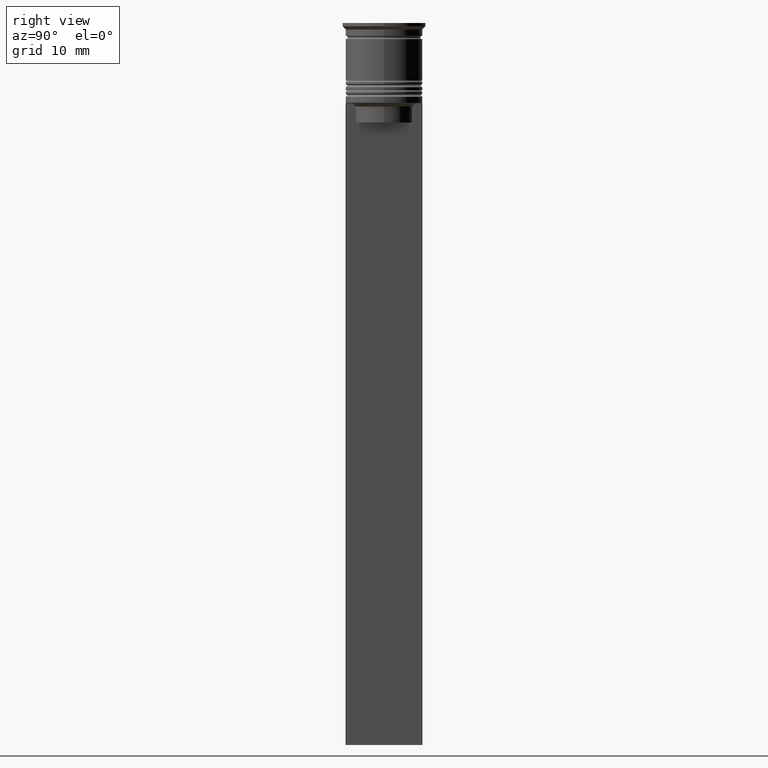
[diagram: clean part render]
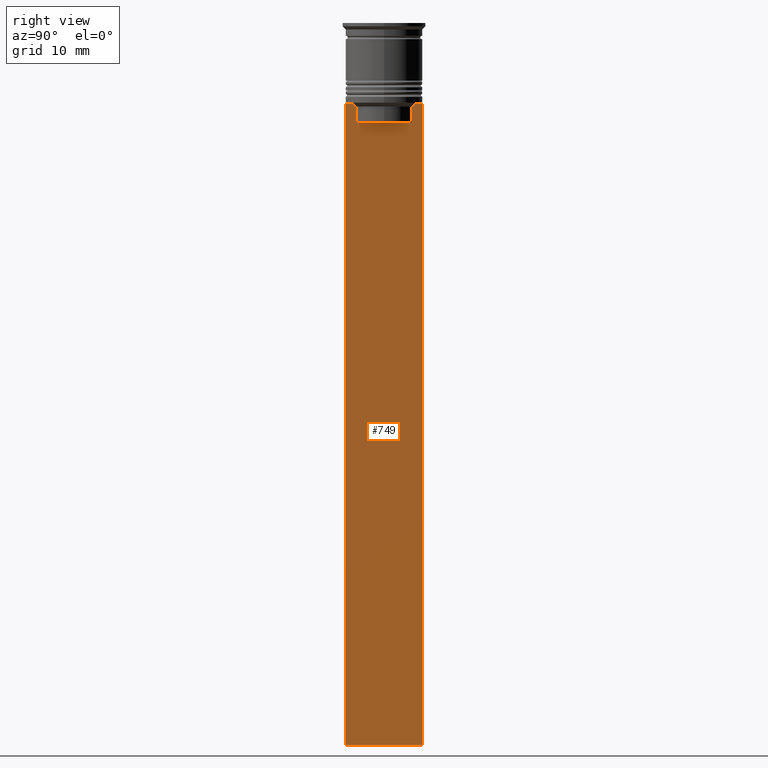
[diagram: same view with one face highlighted and labeled with its STEP entity id]
A machine part, right view. The second image highlights one B-rep face of the part: STEP entity #749.
In plain terms, the highlighted planar face has unit normal (-1, 0, 0).
Its self-contained STEP definition (entity closure, byte-faithful):
#2 = CARTESIAN_POINT ( 'NONE',  ( 0.5000000000000002220, -4.371498598878878816, -15.50000000000000000 ) ) ;
#18 = ORIENTED_EDGE ( 'NONE', *, *, #1200, .T. ) ;
#52 = CARTESIAN_POINT ( 'NONE',  ( 0.5000000000000002220, -6.000000000000000000, -112.5000000000000000 ) ) ;
#64 = B_SPLINE_CURVE_WITH_KNOTS ( 'NONE', 3,
 ( #1372, #975, #1768, #1603 ),
 .UNSPECIFIED., .F., .F.,
 ( 4, 4 ),
 ( 0.02089901220910808308, 0.02161421017310286019 ),
 .UNSPECIFIED. ) ;
#83 = VERTEX_POINT ( 'NONE', #1363 ) ;
#123 = VECTOR ( 'NONE', #1252, 1000.000000000000000 ) ;
#143 = CARTESIAN_POINT ( 'NONE',  ( 0.5000000000000002220, 4.371498598878878816, 0.000000000000000000 ) ) ;
#177 = ORIENTED_EDGE ( 'NONE', *, *, #322, .T. ) ;
#185 = ORIENTED_EDGE ( 'NONE', *, *, #1312, .T. ) ;
#227 = CARTESIAN_POINT ( 'NONE',  ( 0.5000000000000002220, 4.874423042781576676, -12.50000000000000000 ) ) ;
#229 = VERTEX_POINT ( 'NONE', #701 ) ;
#233 = VECTOR ( 'NONE', #1676, 1000.000000000000000 ) ;
#236 = EDGE_CURVE ( 'NONE', #2370, #2077, #1045, .T. ) ;
#312 = ORIENTED_EDGE ( 'NONE', *, *, #1699, .T. ) ;
#322 = EDGE_CURVE ( 'NONE', #1324, #1302, #1873, .T. ) ;
#325 = PLANE ( 'NONE',  #1673 ) ;
#350 = LINE ( 'NONE', #1701, #1726 ) ;
#400 = ORIENTED_EDGE ( 'NONE', *, *, #2465, .T. ) ;
#410 = CARTESIAN_POINT ( 'NONE',  ( 0.5000000000000002220, -6.000000000000000000, -0.4584054212077061097 ) ) ;
#448 = VECTOR ( 'NONE', #577, 1000.000000000000000 ) ;
#489 = EDGE_LOOP ( 'NONE', ( #1497, #1487, #1790, #177, #312, #1780, #1098, #400, #185, #18, #586, #651 ) ) ;
#532 = CARTESIAN_POINT ( 'NONE',  ( 0.5000000000000002220, 6.000000000000000888, -12.50000000000000000 ) ) ;
#554 = DIRECTION ( 'NONE',  ( 0.000000000000000000, 0.000000000000000000, -1.000000000000000000 ) ) ;
#577 = DIRECTION ( 'NONE',  ( 0.000000000000000000, -1.000000000000000000, 0.000000000000000000 ) ) ;
#586 = ORIENTED_EDGE ( 'NONE', *, *, #2445, .F. ) ;
#651 = ORIENTED_EDGE ( 'NONE', *, *, #236, .T. ) ;
#701 = CARTESIAN_POINT ( 'NONE',  ( 0.5000000000000002220, -5.878775382679627626, -12.50000000000000000 ) ) ;
#749 = ADVANCED_FACE ( 'NONE', ( #1264 ), #325, .F. ) ;
#753 = LINE ( 'NONE', #2115, #1311 ) ;
#754 = LINE ( 'NONE', #1327, #1037 ) ;
#774 = DIRECTION ( 'NONE',  ( 0.000000000000000000, -1.000000000000000000, 0.000000000000000000 ) ) ;
#775 = LINE ( 'NONE', #1514, #2213 ) ;
#786 = DIRECTION ( 'NONE',  ( 0.000000000000000000, 1.000000000000000000, 0.000000000000000000 ) ) ;
#850 = CARTESIAN_POINT ( 'NONE',  ( 0.5000000000000002220, -6.000000000000000000, -12.50000000000000000 ) ) ;
#957 = CARTESIAN_POINT ( 'NONE',  ( 0.5000000000000002220, 4.539195634199896467, -12.83338923751318816 ) ) ;
#962 = VERTEX_POINT ( 'NONE', #1977 ) ;
#975 = CARTESIAN_POINT ( 'NONE',  ( 0.5000000000000002220, -4.539195586926423331, -12.83338928448044314 ) ) ;
#980 = VECTOR ( 'NONE', #1465, 1000.000000000000000 ) ;
#1037 = VECTOR ( 'NONE', #554, 1000.000000000000000 ) ;
#1045 = LINE ( 'NONE', #850, #980 ) ;
#1046 = CARTESIAN_POINT ( 'NONE',  ( 0.5000000000000002220, -6.000000000000000000, -12.50000000000000000 ) ) ;
#1052 = EDGE_CURVE ( 'NONE', #1094, #1324, #1071, .T. ) ;
#1071 = LINE ( 'NONE', #143, #123 ) ;
#1076 = DIRECTION ( 'NONE',  ( -1.000000000000000000, 0.000000000000000000, 0.000000000000000000 ) ) ;
#1094 = VERTEX_POINT ( 'NONE', #1459 ) ;
#1098 = ORIENTED_EDGE ( 'NONE', *, *, #2478, .T. ) ;
#1109 = LINE ( 'NONE', #410, #1271 ) ;
#1124 = CARTESIAN_POINT ( 'NONE',  ( 0.5000000000000002220, 6.000000000000000888, -112.5000000000000000 ) ) ;
#1138 = CARTESIAN_POINT ( 'NONE',  ( 0.5000000000000002220, 4.874423042781576676, -12.50000000000000000 ) ) ;
#1155 = CARTESIAN_POINT ( 'NONE',  ( 0.5000000000000002220, 4.706831415367288329, -12.66671683478479160 ) ) ;
#1157 = CARTESIAN_POINT ( 'NONE',  ( 0.5000000000000002220, 4.371498598878878816, -15.50000000000000000 ) ) ;
#1162 = CARTESIAN_POINT ( 'NONE',  ( 0.5000000000000002220, 4.399999999999999467, -15.50000000000000000 ) ) ;
#1168 = LINE ( 'NONE', #1721, #448 ) ;
#1200 = EDGE_CURVE ( 'NONE', #1420, #2492, #753, .T. ) ;
#1252 = DIRECTION ( 'NONE',  ( 0.000000000000000000, 0.000000000000000000, -1.000000000000000000 ) ) ;
#1264 = FACE_OUTER_BOUND ( 'NONE', #489, .T. ) ;
#1271 = VECTOR ( 'NONE', #1314, 1000.000000000000000 ) ;
#1291 = CARTESIAN_POINT ( 'NONE',  ( 0.5000000000000002220, -6.000000000000000000, -0.4584054212077061097 ) ) ;
#1294 = CARTESIAN_POINT ( 'NONE',  ( 0.5000000000000002220, 5.878775382679627626, -12.50000000000000000 ) ) ;
#1302 = VERTEX_POINT ( 'NONE', #2 ) ;
#1311 = VECTOR ( 'NONE', #786, 1000.000000000000000 ) ;
#1312 = EDGE_CURVE ( 'NONE', #1525, #1420, #1109, .T. ) ;
#1314 = DIRECTION ( 'NONE',  ( 0.000000000000000000, 0.000000000000000000, -1.000000000000000000 ) ) ;
#1324 = VERTEX_POINT ( 'NONE', #1157 ) ;
#1327 = CARTESIAN_POINT ( 'NONE',  ( 0.5000000000000002220, 6.000000000000000888, -0.4584054212077061097 ) ) ;
#1363 = CARTESIAN_POINT ( 'NONE',  ( 0.5000000000000002220, -4.371498598878878816, -13.00000000000000178 ) ) ;
#1372 = CARTESIAN_POINT ( 'NONE',  ( 0.5000000000000002220, -4.371498598878878816, -13.00000000000000178 ) ) ;
#1384 = VERTEX_POINT ( 'NONE', #227 ) ;
#1420 = VERTEX_POINT ( 'NONE', #52 ) ;
#1459 = CARTESIAN_POINT ( 'NONE',  ( 0.5000000000000002220, 4.371498598878878816, -13.00000000000000178 ) ) ;
#1465 = DIRECTION ( 'NONE',  ( 0.000000000000000000, -1.000000000000000000, 0.000000000000000000 ) ) ;
#1487 = ORIENTED_EDGE ( 'NONE', *, *, #1641, .T. ) ;
#1497 = ORIENTED_EDGE ( 'NONE', *, *, #2084, .T. ) ;
#1514 = CARTESIAN_POINT ( 'NONE',  ( 0.5000000000000002220, -4.371498598878878816, 0.000000000000000000 ) ) ;
#1525 = VERTEX_POINT ( 'NONE', #1046 ) ;
#1539 = DIRECTION ( 'NONE',  ( -0.000000000000000000, -0.000000000000000000, 1.000000000000000000 ) ) ;
#1556 = CARTESIAN_POINT ( 'NONE',  ( 0.5000000000000002220, -6.000000000000000000, -12.50000000000000000 ) ) ;
#1603 = CARTESIAN_POINT ( 'NONE',  ( 0.5000000000000002220, -4.874423042781576676, -12.50000000000000000 ) ) ;
#1641 = EDGE_CURVE ( 'NONE', #1384, #1094, #2254, .T. ) ;
#1673 = AXIS2_PLACEMENT_3D ( 'NONE', #1291, #1076, #1859 ) ;
#1676 = DIRECTION ( 'NONE',  ( 0.000000000000000000, -1.000000000000000000, 0.000000000000000000 ) ) ;
#1699 = EDGE_CURVE ( 'NONE', #1302, #83, #775, .T. ) ;
#1701 = CARTESIAN_POINT ( 'NONE',  ( 0.5000000000000002220, -6.000000000000000000, -12.50000000000000000 ) ) ;
#1721 = CARTESIAN_POINT ( 'NONE',  ( 0.5000000000000002220, -6.000000000000000000, -12.50000000000000000 ) ) ;
#1726 = VECTOR ( 'NONE', #774, 1000.000000000000000 ) ;
#1767 = VECTOR ( 'NONE', #2294, 1000.000000000000000 ) ;
#1768 = CARTESIAN_POINT ( 'NONE',  ( 0.5000000000000002220, -4.706831372970962768, -12.66671687695981774 ) ) ;
#1780 = ORIENTED_EDGE ( 'NONE', *, *, #1782, .T. ) ;
#1782 = EDGE_CURVE ( 'NONE', #83, #962, #64, .T. ) ;
#1790 = ORIENTED_EDGE ( 'NONE', *, *, #1052, .T. ) ;
#1859 = DIRECTION ( 'NONE',  ( 0.000000000000000000, 0.000000000000000000, 1.000000000000000000 ) ) ;
#1873 = LINE ( 'NONE', #1162, #233 ) ;
#1977 = CARTESIAN_POINT ( 'NONE',  ( 0.5000000000000002220, -4.874423042781576676, -12.50000000000000000 ) ) ;
#2077 = VERTEX_POINT ( 'NONE', #1294 ) ;
#2084 = EDGE_CURVE ( 'NONE', #2077, #1384, #350, .T. ) ;
#2115 = CARTESIAN_POINT ( 'NONE',  ( 0.5000000000000002220, -6.000000000000000000, -112.5000000000000000 ) ) ;
#2141 = LINE ( 'NONE', #1556, #1767 ) ;
#2213 = VECTOR ( 'NONE', #1539, 1000.000000000000000 ) ;
#2254 = B_SPLINE_CURVE_WITH_KNOTS ( 'NONE', 3,
 ( #1138, #1155, #957, #2274 ),
 .UNSPECIFIED., .F., .F.,
 ( 4, 4 ),
 ( 0.008336552452178421987, 0.009045730124312839626 ),
 .UNSPECIFIED. ) ;
#2274 = CARTESIAN_POINT ( 'NONE',  ( 0.5000000000000002220, 4.371498598878878816, -13.00000000000000178 ) ) ;
#2294 = DIRECTION ( 'NONE',  ( 0.000000000000000000, -1.000000000000000000, 0.000000000000000000 ) ) ;
#2370 = VERTEX_POINT ( 'NONE', #532 ) ;
#2445 = EDGE_CURVE ( 'NONE', #2370, #2492, #754, .T. ) ;
#2465 = EDGE_CURVE ( 'NONE', #229, #1525, #1168, .T. ) ;
#2478 = EDGE_CURVE ( 'NONE', #962, #229, #2141, .T. ) ;
#2492 = VERTEX_POINT ( 'NONE', #1124 ) ;